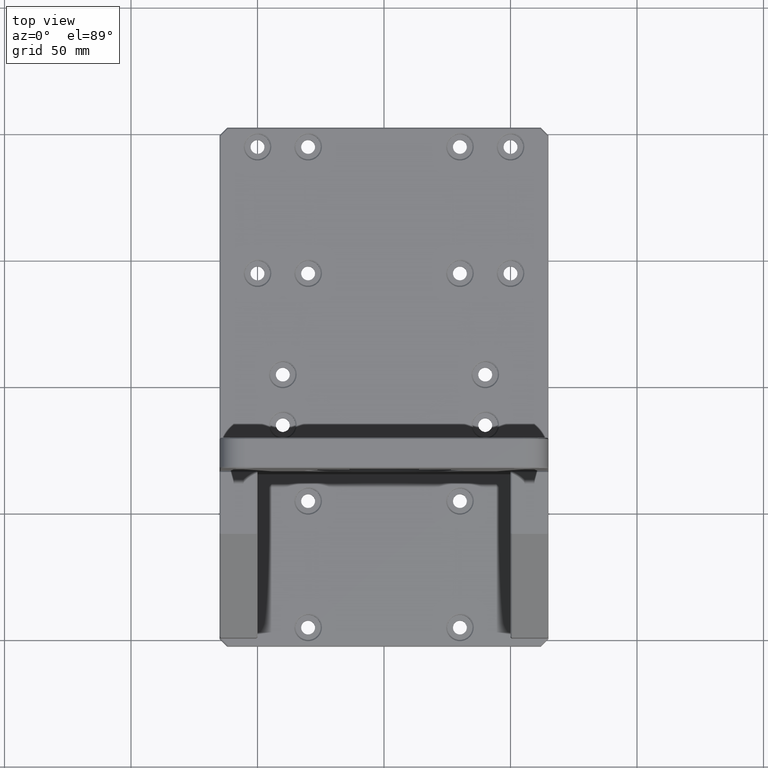
[diagram: clean part render]
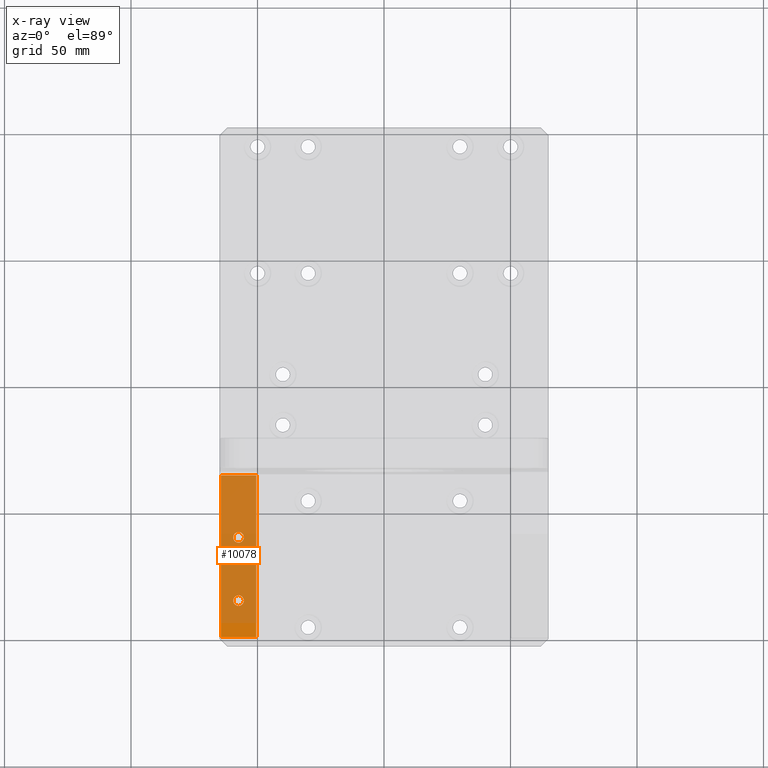
[diagram: x-ray — body ghosted, one internal face saturated and labeled with its STEP entity id]
A machine part, top view, then the same camera in x-ray: the body is ghosted and one INTERNAL B-rep face — a face not visible from any outside direction — is saturated and labeled: STEP entity #10078.
In plain terms, the highlighted planar face has unit normal (0, 0, 1).
Its self-contained STEP definition (entity closure, byte-faithful):
#66 = DIRECTION ( 'NONE',  ( -1.047444401652940007E-14, 0.0000000000000000000, -1.000000000000000000 ) ) ;
#201 = PLANE ( 'NONE',  #471 ) ;
#210 = DIRECTION ( 'NONE',  ( 1.000000000000000000, 1.396592535537253342E-14, -1.047444401652940007E-14 ) ) ;
#345 = VERTEX_POINT ( 'NONE', #6421 ) ;
#471 = AXIS2_PLACEMENT_3D ( 'NONE', #4239, #2996, #5848 ) ;
#693 = DIRECTION ( 'NONE',  ( -1.047444401652940007E-14, 0.0000000000000000000, -1.000000000000000000 ) ) ;
#1470 = FACE_BOUND ( 'NONE', #3285, .T. ) ;
#1545 = VERTEX_POINT ( 'NONE', #7940 ) ;
#1560 = CARTESIAN_POINT ( 'NONE',  ( -57.49999999999904077, -59.50000000000083844, 12.00000000000058442 ) ) ;
#1571 = CARTESIAN_POINT ( 'NONE',  ( -64.49999999999850786, -99.00000000000095213, 12.00000000000068034 ) ) ;
#1714 = LINE ( 'NONE', #3328, #5802 ) ;
#2012 = VECTOR ( 'NONE', #5210, 1000.000000000000000 ) ;
#2048 = CARTESIAN_POINT ( 'NONE',  ( -50.49999999999847944, -99.50000000000075318, 12.00000000000053291 ) ) ;
#2056 = VERTEX_POINT ( 'NONE', #1571 ) ;
#2996 = DIRECTION ( 'NONE',  ( 1.047444401652939533E-14, 3.311995080575179564E-16, 1.000000000000000000 ) ) ;
#3285 = EDGE_LOOP ( 'NONE', ( #9115, #5851 ) ) ;
#3328 = CARTESIAN_POINT ( 'NONE',  ( -64.49999999999849365, -99.50000000000095213, 12.00000000000068034 ) ) ;
#3474 = CARTESIAN_POINT ( 'NONE',  ( -50.49999999999848654, -99.00000000000075318, 12.00000000000053291 ) ) ;
#4239 = CARTESIAN_POINT ( 'NONE',  ( -64.99999999999847944, -99.50000000000095213, 12.00000000000068567 ) ) ;
#4297 = EDGE_CURVE ( 'NONE', #345, #4934, #14169, .T. ) ;
#4554 = ORIENTED_EDGE ( 'NONE', *, *, #4297, .T. ) ;
#4705 = ORIENTED_EDGE ( 'NONE', *, *, #11309, .F. ) ;
#4934 = VERTEX_POINT ( 'NONE', #13588 ) ;
#5099 = AXIS2_PLACEMENT_3D ( 'NONE', #5970, #693, #7126 ) ;
#5210 = DIRECTION ( 'NONE',  ( -1.000000000000000000, -1.396592535537253342E-14, 1.047444401652940007E-14 ) ) ;
#5802 = VECTOR ( 'NONE', #16832, 1000.000000000000000 ) ;
#5848 = DIRECTION ( 'NONE',  ( -1.396592535537253658E-14, 1.000000000000000000, -3.311995080573716721E-16 ) ) ;
#5851 = ORIENTED_EDGE ( 'NONE', *, *, #13433, .F. ) ;
#5970 = CARTESIAN_POINT ( 'NONE',  ( -57.49999999999904077, -59.50000000000083844, 12.00000000000058442 ) ) ;
#6421 = CARTESIAN_POINT ( 'NONE',  ( -64.49999999999938893, -35.00000000000091660, 12.00000000000065903 ) ) ;
#6738 = EDGE_CURVE ( 'NONE', #2056, #345, #1714, .T. ) ;
#6885 = LINE ( 'NONE', #12340, #2012 ) ;
#6948 = ORIENTED_EDGE ( 'NONE', *, *, #6738, .T. ) ;
#6999 = DIRECTION ( 'NONE',  ( -1.047444401652940007E-14, 0.0000000000000000000, -1.000000000000000000 ) ) ;
#7126 = DIRECTION ( 'NONE',  ( -1.000000000000000000, -1.321694076934716042E-14, 1.073876437509456804E-14 ) ) ;
#7793 = CIRCLE ( 'NONE', #14372, 2.099999999999990763 ) ;
#7940 = CARTESIAN_POINT ( 'NONE',  ( -59.59999999999867271, -84.50000000000086686, 12.00000000000060751 ) ) ;
#8820 = EDGE_CURVE ( 'NONE', #4934, #17296, #9812, .T. ) ;
#9115 = ORIENTED_EDGE ( 'NONE', *, *, #13190, .F. ) ;
#9485 = VERTEX_POINT ( 'NONE', #15019 ) ;
#9812 = LINE ( 'NONE', #2048, #12572 ) ;
#9832 = ORIENTED_EDGE ( 'NONE', *, *, #8820, .T. ) ;
#10078 = ADVANCED_FACE ( 'NONE', ( #16494, #12547, #1470 ), #201, .F. ) ;
#10292 = EDGE_LOOP ( 'NONE', ( #6948, #4554, #9832, #16080 ) ) ;
#10429 = VECTOR ( 'NONE', #210, 1000.000000000000000 ) ;
#10570 = CARTESIAN_POINT ( 'NONE',  ( -59.59999999999902798, -59.50000000000086686, 12.00000000000060751 ) ) ;
#10704 = DIRECTION ( 'NONE',  ( -1.047444401652940007E-14, 0.0000000000000000000, -1.000000000000000000 ) ) ;
#10759 = EDGE_LOOP ( 'NONE', ( #4705, #15341 ) ) ;
#10947 = AXIS2_PLACEMENT_3D ( 'NONE', #12040, #10704, #13208 ) ;
#11309 = EDGE_CURVE ( 'NONE', #11552, #12170, #11324, .T. ) ;
#11324 = CIRCLE ( 'NONE', #17091, 2.099999999999990763 ) ;
#11552 = VERTEX_POINT ( 'NONE', #10570 ) ;
#12040 = CARTESIAN_POINT ( 'NONE',  ( -57.49999999999868550, -84.50000000000083844, 12.00000000000058442 ) ) ;
#12076 = CIRCLE ( 'NONE', #10947, 2.099999999999990763 ) ;
#12170 = VERTEX_POINT ( 'NONE', #15799 ) ;
#12320 = CARTESIAN_POINT ( 'NONE',  ( -57.49999999999868550, -84.50000000000083844, 12.00000000000058442 ) ) ;
#12340 = CARTESIAN_POINT ( 'NONE',  ( -64.99999999999849365, -99.00000000000095213, 12.00000000000068567 ) ) ;
#12453 = DIRECTION ( 'NONE',  ( -1.000000000000000000, -1.321694076934716042E-14, 1.073876437509456804E-14 ) ) ;
#12547 = FACE_BOUND ( 'NONE', #10759, .T. ) ;
#12572 = VECTOR ( 'NONE', #15352, 1000.000000000000000 ) ;
#13190 = EDGE_CURVE ( 'NONE', #1545, #9485, #7793, .T. ) ;
#13208 = DIRECTION ( 'NONE',  ( -1.000000000000000000, -1.321694076934716042E-14, 1.073876437509456804E-14 ) ) ;
#13372 = CIRCLE ( 'NONE', #5099, 2.099999999999990763 ) ;
#13433 = EDGE_CURVE ( 'NONE', #9485, #1545, #12076, .T. ) ;
#13588 = CARTESIAN_POINT ( 'NONE',  ( -50.49999999999938183, -35.00000000000072475, 12.00000000000051159 ) ) ;
#14169 = LINE ( 'NONE', #15516, #10429 ) ;
#14372 = AXIS2_PLACEMENT_3D ( 'NONE', #12320, #66, #16900 ) ;
#14525 = EDGE_CURVE ( 'NONE', #12170, #11552, #13372, .T. ) ;
#15019 = CARTESIAN_POINT ( 'NONE',  ( -55.39999999999869118, -84.50000000000081002, 12.00000000000056311 ) ) ;
#15341 = ORIENTED_EDGE ( 'NONE', *, *, #14525, .F. ) ;
#15352 = DIRECTION ( 'NONE',  ( 1.396592535537253658E-14, -1.000000000000000000, 3.311995080573716721E-16 ) ) ;
#15516 = CARTESIAN_POINT ( 'NONE',  ( -64.99999999999937472, -35.00000000000092371, 12.00000000000066436 ) ) ;
#15799 = CARTESIAN_POINT ( 'NONE',  ( -55.39999999999904645, -59.50000000000081002, 12.00000000000056311 ) ) ;
#16080 = ORIENTED_EDGE ( 'NONE', *, *, #16833, .T. ) ;
#16494 = FACE_OUTER_BOUND ( 'NONE', #10292, .T. ) ;
#16832 = DIRECTION ( 'NONE',  ( -1.396592535537253658E-14, 1.000000000000000000, -3.311995080573716721E-16 ) ) ;
#16833 = EDGE_CURVE ( 'NONE', #17296, #2056, #6885, .T. ) ;
#16900 = DIRECTION ( 'NONE',  ( -1.000000000000000000, -1.321694076934716042E-14, 1.073876437509456804E-14 ) ) ;
#17091 = AXIS2_PLACEMENT_3D ( 'NONE', #1560, #6999, #12453 ) ;
#17296 = VERTEX_POINT ( 'NONE', #3474 ) ;